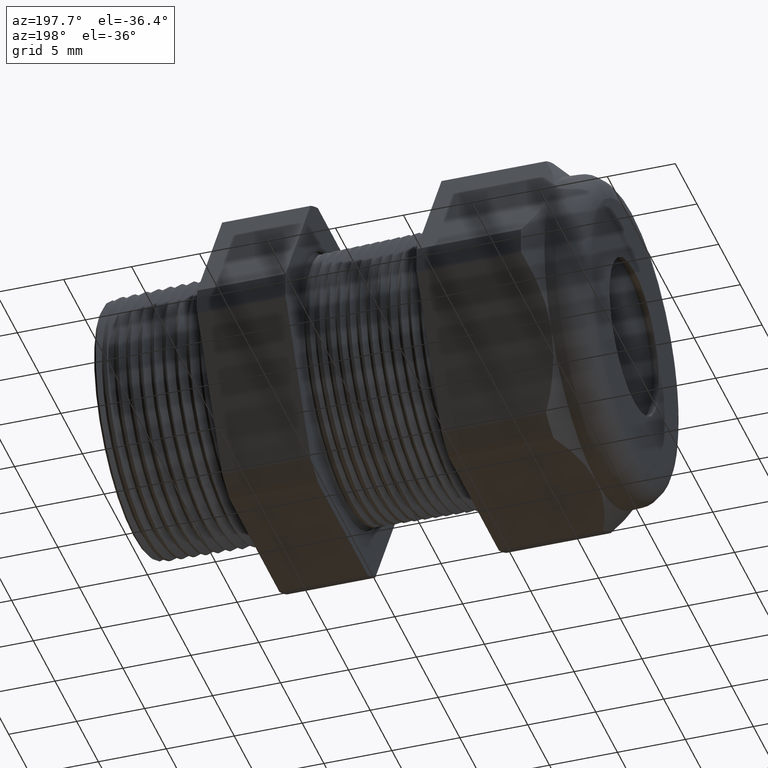
[diagram: clean part render]
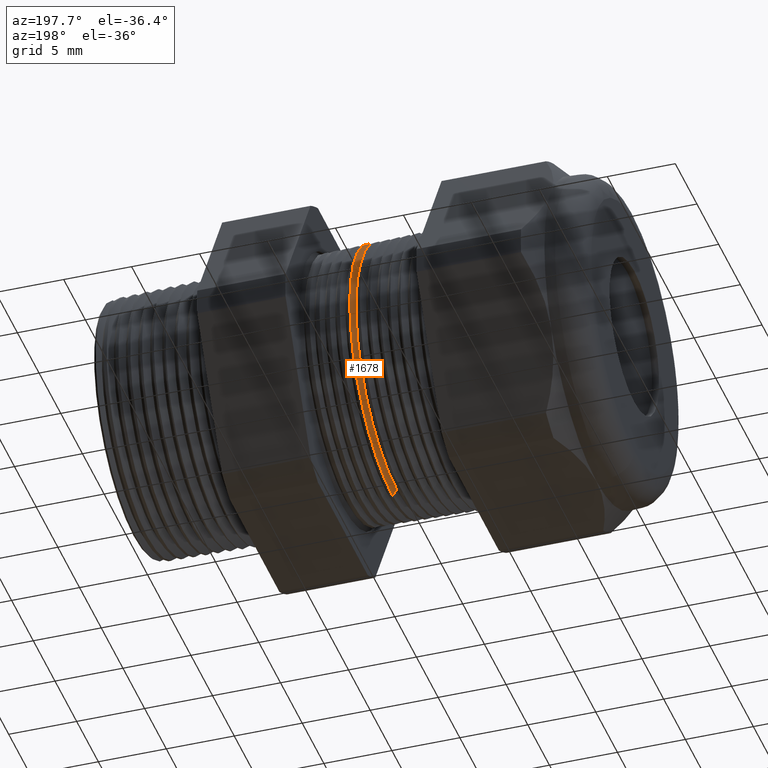
[diagram: same view with one face highlighted and labeled with its STEP entity id]
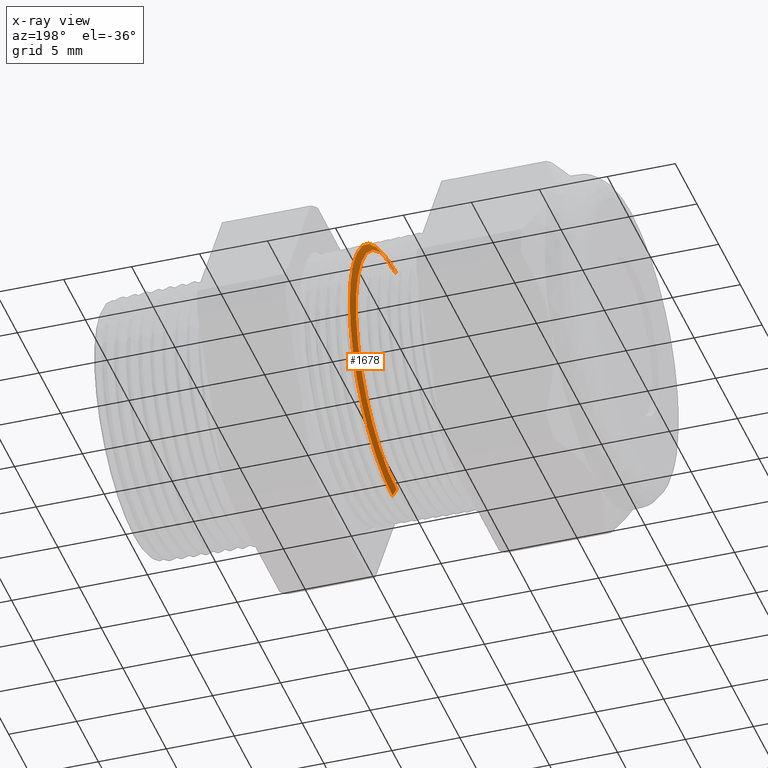
[diagram: x-ray of the same camera — body ghosted, the highlighted face saturated]
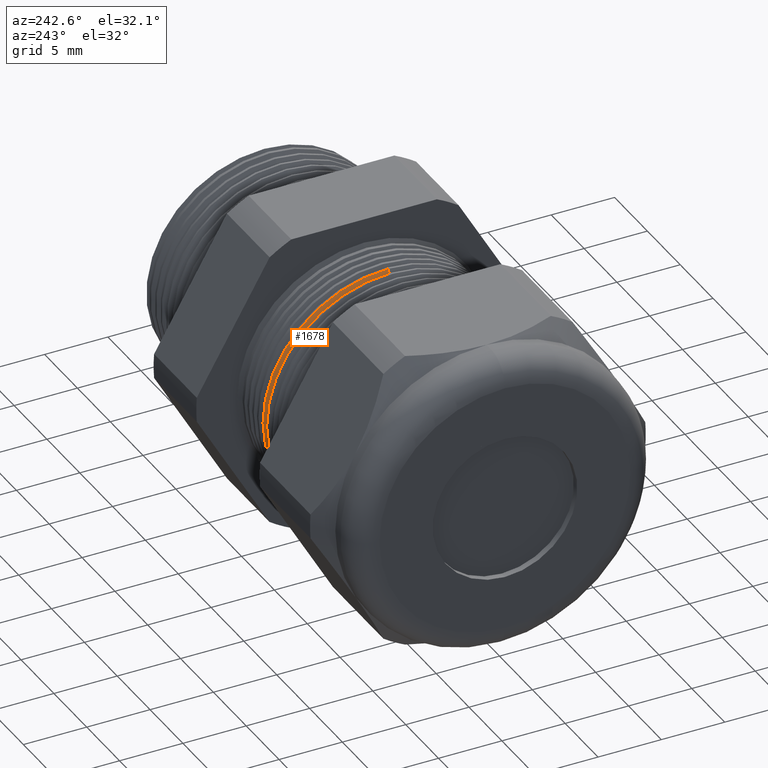
[diagram: same view with one face highlighted and labeled with its STEP entity id]
A machine part, auxiliary view. The second image highlights one B-rep face of the part: STEP entity #1678.
The next image is the same camera in x-ray: the body ghosted, the highlighted face saturated — about 1% of this face is hidden behind the body in this view.
A second angle (auxiliary view) of the same face is appended — the face is thin or edge-on in the first view.
In plain terms, the highlighted conical surface has half-angle 58.5 deg.
Its self-contained STEP definition (entity closure, byte-faithful):
#1678 = ADVANCED_FACE ( 'NONE', ( #4724 ), #4723, .T. ) ;
#1679 = EDGE_LOOP ( 'NONE', ( #1727, #1686, #1689, #1692 ) ) ;
#1680 = VERTEX_POINT ( 'NONE', #4719 ) ;
#1686 = ORIENTED_EDGE ( 'NONE', *, *, #1687, .T. ) ;
#1687 = EDGE_CURVE ( 'NONE', #1729, #1688, #4712, .T. ) ;
#1688 = VERTEX_POINT ( 'NONE', #4708 ) ;
#1689 = ORIENTED_EDGE ( 'NONE', *, *, #1690, .T. ) ;
#1690 = EDGE_CURVE ( 'NONE', #1688, #1691, #4707, .T. ) ;
#1691 = VERTEX_POINT ( 'NONE', #4702 ) ;
#1692 = ORIENTED_EDGE ( 'NONE', *, *, #1730, .F. ) ;
#1727 = ORIENTED_EDGE ( 'NONE', *, *, #1728, .T. ) ;
#1728 = EDGE_CURVE ( 'NONE', #1680, #1729, #4785, .T. ) ;
#1729 = VERTEX_POINT ( 'NONE', #4780 ) ;
#1730 = EDGE_CURVE ( 'NONE', #1680, #1691, #4779, .T. ) ;
#4664 = CARTESIAN_POINT ( 'NONE',  ( -0.7216586839320379100, 0.0000000000000000000, 0.0000000000000000000 ) ) ;
#4702 = CARTESIAN_POINT ( 'NONE',  ( -0.7098920471679521800, 4.761820371593978500E-017, -0.3888321412271149000 ) ) ;
#4703 = DIRECTION ( 'NONE',  ( 0.0000000000000000000, 0.0000000000000000000, -1.000000000000000000 ) ) ;
#4704 = DIRECTION ( 'NONE',  ( -1.000000000000000000, 0.0000000000000000000, 0.0000000000000000000 ) ) ;
#4705 = CARTESIAN_POINT ( 'NONE',  ( -0.7098920471679521800, 0.0000000000000000000, 0.0000000000000000000 ) ) ;
#4706 = AXIS2_PLACEMENT_3D ( 'NONE', #4705, #4704, #4703 ) ;
#4707 = CIRCLE ( 'NONE', #4706, 0.3888321412271149000 ) ;
#4708 = CARTESIAN_POINT ( 'NONE',  ( -0.7098920471679521800, 0.0000000000000000000, 0.3888321412271149000 ) ) ;
#4709 = DIRECTION ( 'NONE',  ( 0.5224985647159337000, 1.044183048100723500E-016, 0.8526401643541013900 ) ) ;
#4710 = VECTOR ( 'NONE', #4709, 39.37007874015748900 ) ;
#4711 = CARTESIAN_POINT ( 'NONE',  ( -0.7216586839320379100, 4.526670966946380000E-017, 0.3696307351718083300 ) ) ;
#4712 = LINE ( 'NONE', #4711, #4710 ) ;
#4719 = CARTESIAN_POINT ( 'NONE',  ( -0.7216586839320379100, 4.647855336083581100E-017, -0.3696307351718083300 ) ) ;
#4720 = DIRECTION ( 'NONE',  ( 0.0000000000000000000, 0.0000000000000000000, -1.000000000000000000 ) ) ;
#4721 = DIRECTION ( 'NONE',  ( 1.000000000000000000, 0.0000000000000000000, 0.0000000000000000000 ) ) ;
#4722 = AXIS2_PLACEMENT_3D ( 'NONE', #4664, #4721, #4720 ) ;
#4723 = CONICAL_SURFACE ( 'NONE', #4722, 0.3696307351718083300, 1.021017612416700500 ) ;
#4724 = FACE_OUTER_BOUND ( 'NONE', #1679, .T. ) ;
#4776 = DIRECTION ( 'NONE',  ( 0.5224985647159337000, 0.0000000000000000000, -0.8526401643541013900 ) ) ;
#4777 = VECTOR ( 'NONE', #4776, 39.37007874015748900 ) ;
#4778 = CARTESIAN_POINT ( 'NONE',  ( -0.7216586839320379100, 0.0000000000000000000, -0.3696307351718083300 ) ) ;
#4779 = LINE ( 'NONE', #4778, #4777 ) ;
#4780 = CARTESIAN_POINT ( 'NONE',  ( -0.7216586839320379100, 0.0000000000000000000, 0.3696307351718083300 ) ) ;
#4781 = DIRECTION ( 'NONE',  ( 0.0000000000000000000, 0.0000000000000000000, -1.000000000000000000 ) ) ;
#4782 = DIRECTION ( 'NONE',  ( 1.000000000000000000, 0.0000000000000000000, 0.0000000000000000000 ) ) ;
#4783 = CARTESIAN_POINT ( 'NONE',  ( -0.7216586839320379100, 0.0000000000000000000, 0.0000000000000000000 ) ) ;
#4784 = AXIS2_PLACEMENT_3D ( 'NONE', #4783, #4782, #4781 ) ;
#4785 = CIRCLE ( 'NONE', #4784, 0.3696307351718083300 ) ;